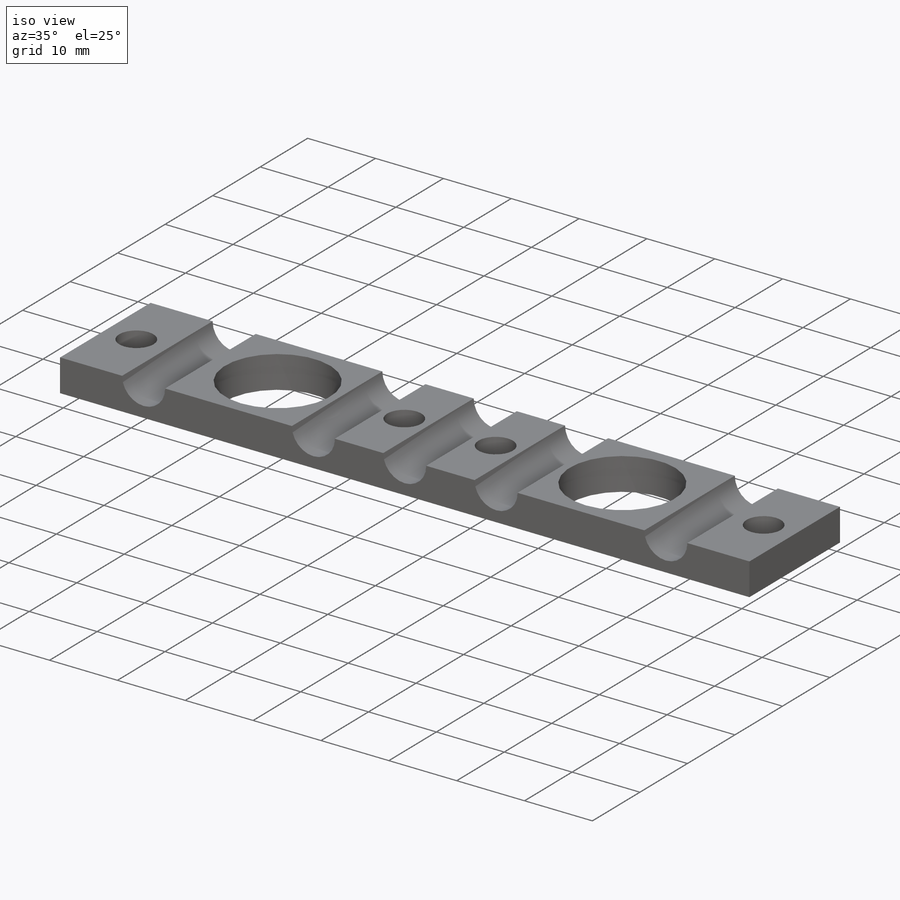
[diagram: iso view]
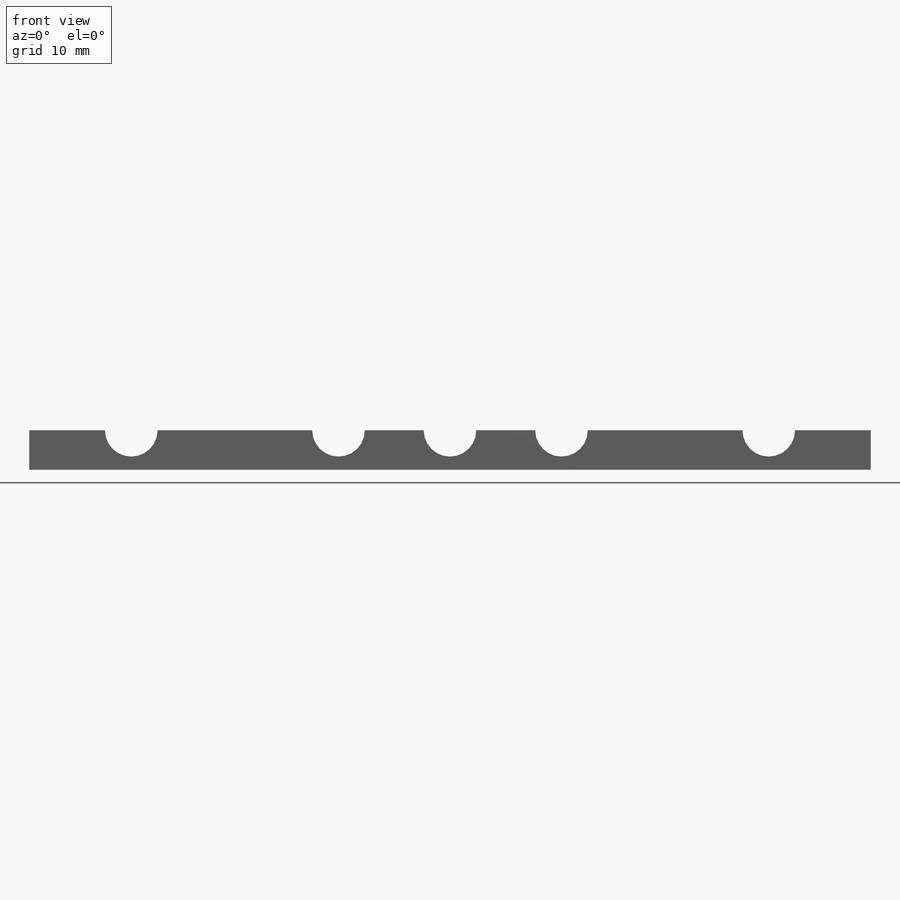
[diagram: front view]
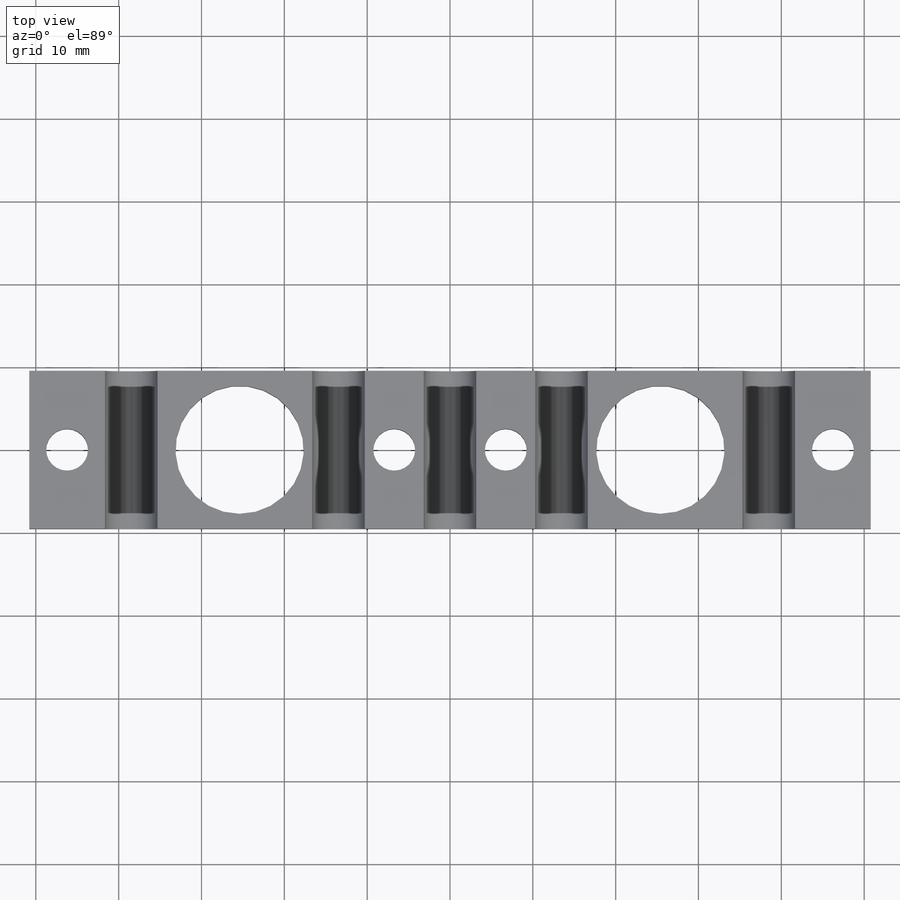
[diagram: top view]
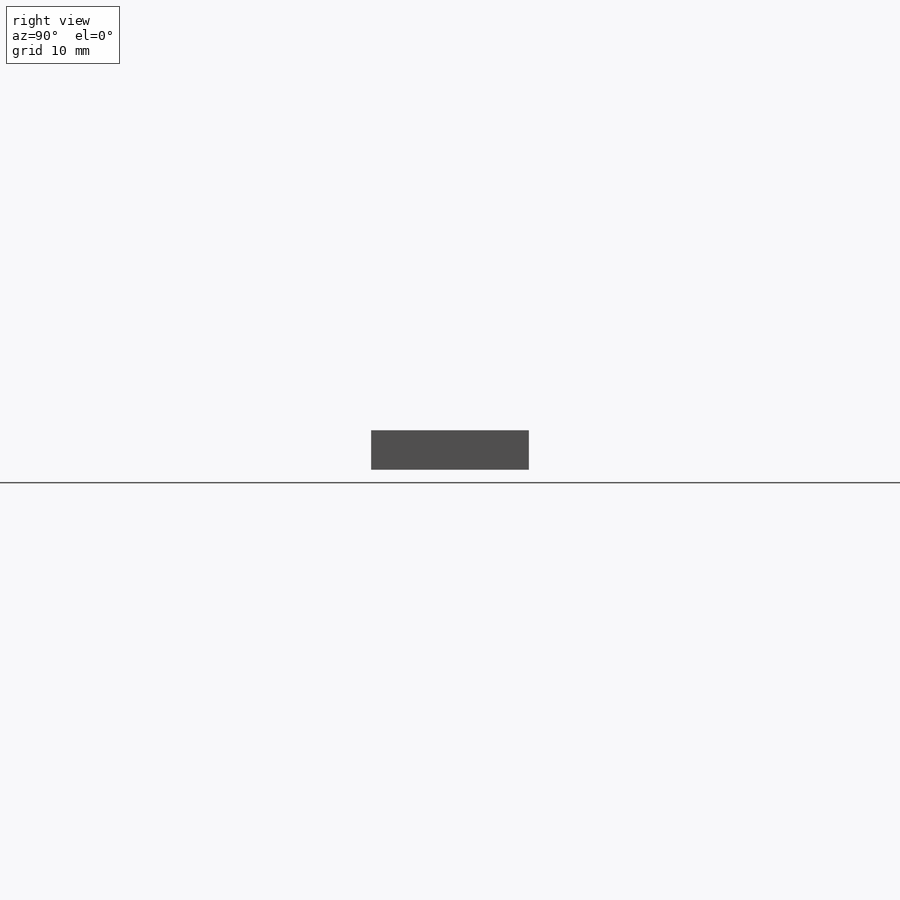
[diagram: right view]
SOLIDWORKS PART (.sldprt)
format: sldprt  version: not decoded by parser v0  size: 253,440 bytes
history: native  units: mm
features: sketch x7, hole x3, material x1, extrude x1 (+16 scaffold rows collapsed)
feature tree (28):
  scaffold x16  (default folders/planes/origin — collapsed)
  material  "FLUOROELASTOMER"
  sketch  "Sketch1"  dims[D1=101.6mm D2=19.05mm]
  extrude  "Extrude1"  Depth=4.7625mm
  hole  "39/64 (0.60938) Diameter Hole1"  Diameter=15.478252mm Depth=4.7625mm
  sketch  "Sketch3"  dims[D1=25.4mm D2=50.8mm]
  sketch  "Sketch2"  dims[hole-wizard template sketch: 59 standard entries collapsed; hole parameters kept: c18.Thru Hole Dia.=~15.478252mm c18.Thru Hole Depth=4.7625mm]
  hole  "1/4 (0.25) Diameter Hole1"  Diameter=6.35mm Depth=19.05mm
  sketch  "Sketch5"  dims[D1=38.481mm D2=13.462mm]
  sketch  "Sketch4"  dims[hole-wizard template sketch: 60 standard entries collapsed; hole parameters kept: c18.Thru Hole Depth=19.05mm]
  hole  "#8 (0.199) Diameter Hole1"  Diameter=5.0546mm Depth=4.7625mm
  sketch  "Sketch7"
  sketch  "Sketch6"  dims[hole-wizard template sketch: 60 standard entries collapsed; hole parameters kept: c18.Thru Hole Depth=4.7625mm]
decode coverage: 10 of 11 modeling features carry decoded parameters
note: ~ marks probable driven/reference dimensions
note: suppression state not decoded; provenance and decode notes live in map.json
